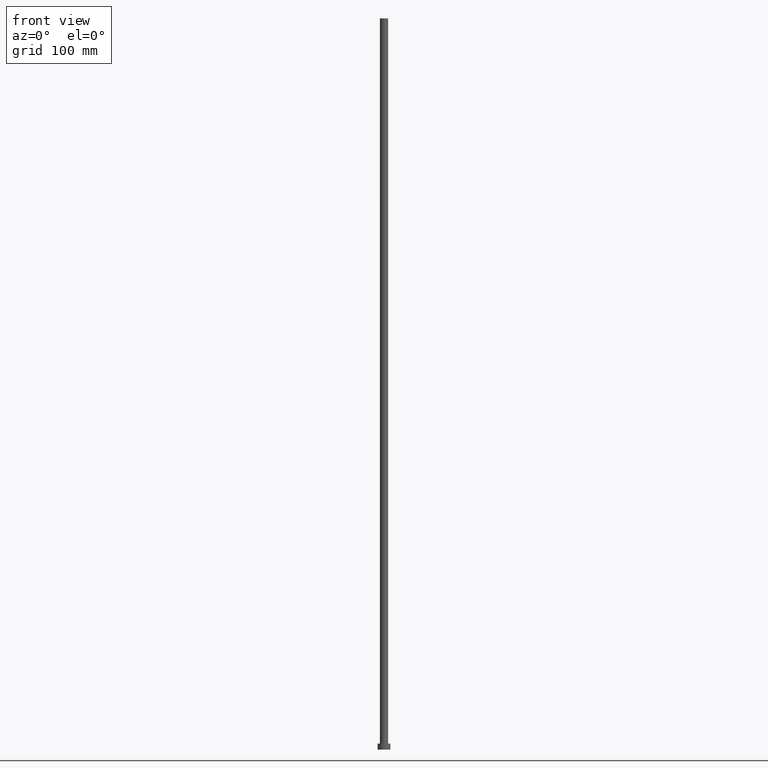
[diagram: clean part render]
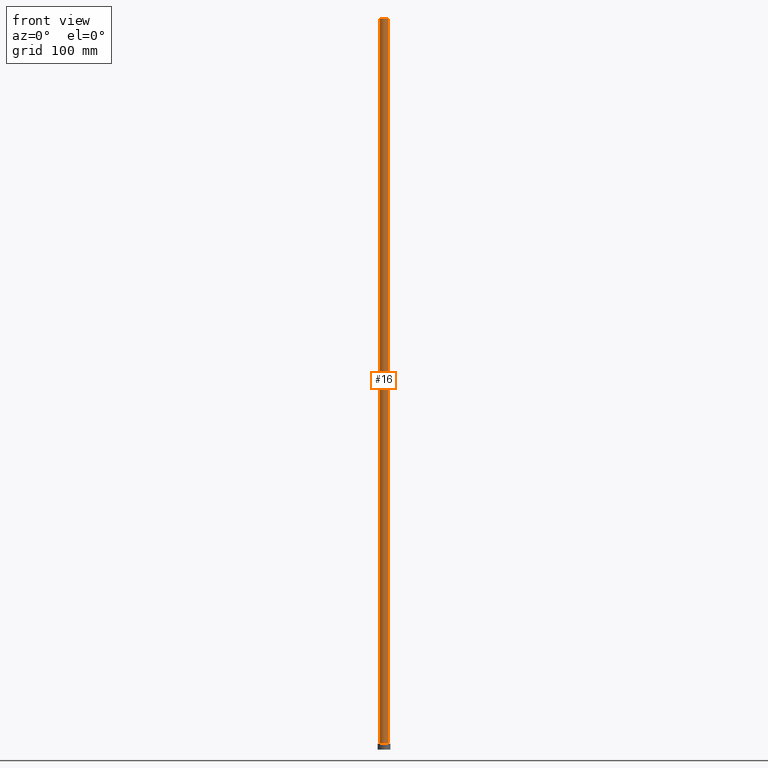
[diagram: same view with one face highlighted and labeled with its STEP entity id]
A machine part, front view. The second image highlights one B-rep face of the part: STEP entity #16.
In plain terms, the highlighted cylindrical surface (edge-blend (fillet) strip) has radius 4.5 mm, axis along (-0, -0, -1).
Its self-contained STEP definition (entity closure, byte-faithful):
#4 = DIRECTION ( 'NONE',  ( 0.000000000000000000, 0.000000000000000000, 1.000000000000000000 ) ) ;
#5 = EDGE_CURVE ( 'NONE', #224, #68, #129, .T. ) ;
#13 = CARTESIAN_POINT ( 'NONE',  ( 4.500000000000000888, 5.510910596163089556E-16, 799.9999999999998863 ) ) ;
#16 = ADVANCED_FACE ( 'NONE', ( #251 ), #211, .T. ) ;
#20 = CARTESIAN_POINT ( 'NONE',  ( 0.000000000000000000, 0.000000000000000000, 799.9999999999998863 ) ) ;
#25 = AXIS2_PLACEMENT_3D ( 'NONE', #20, #32, #175 ) ;
#28 = VERTEX_POINT ( 'NONE', #47 ) ;
#30 = VECTOR ( 'NONE', #104, 1000.000000000000000 ) ;
#32 = DIRECTION ( 'NONE',  ( -0.000000000000000000, -0.000000000000000000, -1.000000000000000000 ) ) ;
#39 = LINE ( 'NONE', #201, #30 ) ;
#43 = ORIENTED_EDGE ( 'NONE', *, *, #223, .T. ) ;
#47 = CARTESIAN_POINT ( 'NONE',  ( -4.500000000000000888, 0.000000000000000000, 6.500000000000000000 ) ) ;
#67 = ORIENTED_EDGE ( 'NONE', *, *, #85, .F. ) ;
#68 = VERTEX_POINT ( 'NONE', #131 ) ;
#79 = AXIS2_PLACEMENT_3D ( 'NONE', #180, #4, #125 ) ;
#85 = EDGE_CURVE ( 'NONE', #149, #224, #115, .T. ) ;
#89 = CARTESIAN_POINT ( 'NONE',  ( 0.000000000000000000, 0.000000000000000000, 799.9999999999998863 ) ) ;
#103 = VECTOR ( 'NONE', #112, 1000.000000000000000 ) ;
#104 = DIRECTION ( 'NONE',  ( -0.000000000000000000, -0.000000000000000000, -1.000000000000000000 ) ) ;
#112 = DIRECTION ( 'NONE',  ( -0.000000000000000000, -0.000000000000000000, -1.000000000000000000 ) ) ;
#115 = CIRCLE ( 'NONE', #192, 4.500000000000000888 ) ;
#125 = DIRECTION ( 'NONE',  ( 1.000000000000000000, 0.000000000000000000, 0.000000000000000000 ) ) ;
#127 = ORIENTED_EDGE ( 'NONE', *, *, #234, .T. ) ;
#129 = LINE ( 'NONE', #13, #103 ) ;
#131 = CARTESIAN_POINT ( 'NONE',  ( 4.500000000000000888, 5.510910596163089556E-16, 6.500000000000000000 ) ) ;
#149 = VERTEX_POINT ( 'NONE', #178 ) ;
#155 = CIRCLE ( 'NONE', #79, 4.500000000000000888 ) ;
#175 = DIRECTION ( 'NONE',  ( -1.000000000000000000, 0.000000000000000000, 0.000000000000000000 ) ) ;
#178 = CARTESIAN_POINT ( 'NONE',  ( -4.500000000000000888, 0.000000000000000000, 799.9999999999998863 ) ) ;
#180 = CARTESIAN_POINT ( 'NONE',  ( 0.000000000000000000, 0.000000000000000000, 6.500000000000000000 ) ) ;
#192 = AXIS2_PLACEMENT_3D ( 'NONE', #89, #255, #198 ) ;
#198 = DIRECTION ( 'NONE',  ( 1.000000000000000000, 0.000000000000000000, 0.000000000000000000 ) ) ;
#201 = CARTESIAN_POINT ( 'NONE',  ( -4.500000000000000888, 0.000000000000000000, 799.9999999999998863 ) ) ;
#211 = CYLINDRICAL_SURFACE ( 'NONE', #25, 4.500000000000000888 ) ;
#219 = ORIENTED_EDGE ( 'NONE', *, *, #5, .F. ) ;
#222 = CARTESIAN_POINT ( 'NONE',  ( 4.500000000000000888, 5.510910596163089556E-16, 799.9999999999998863 ) ) ;
#223 = EDGE_CURVE ( 'NONE', #28, #68, #155, .T. ) ;
#224 = VERTEX_POINT ( 'NONE', #222 ) ;
#234 = EDGE_CURVE ( 'NONE', #149, #28, #39, .T. ) ;
#245 = EDGE_LOOP ( 'NONE', ( #219, #67, #127, #43 ) ) ;
#251 = FACE_OUTER_BOUND ( 'NONE', #245, .T. ) ;
#255 = DIRECTION ( 'NONE',  ( 0.000000000000000000, 0.000000000000000000, 1.000000000000000000 ) ) ;